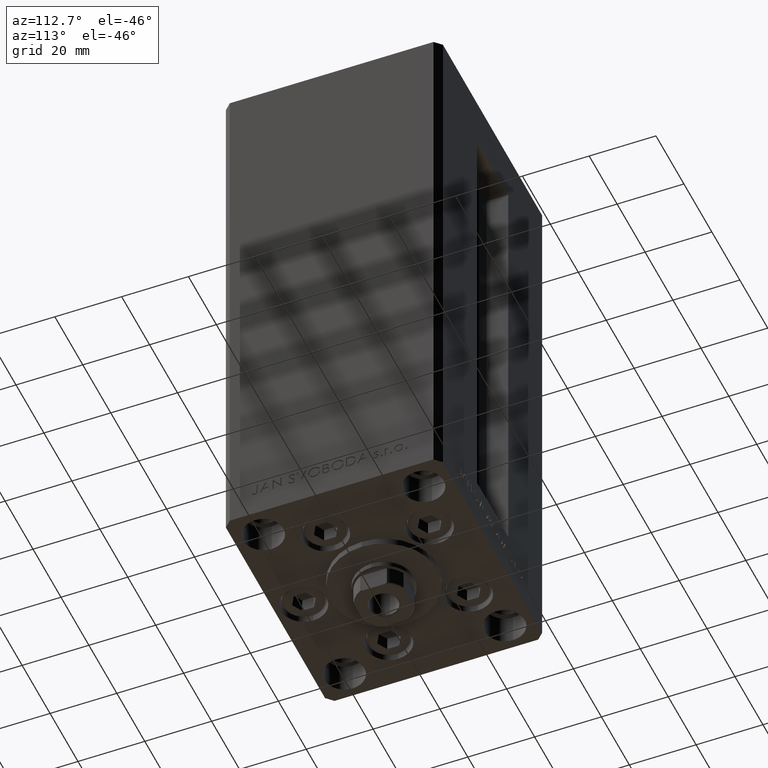
[diagram: clean part render]
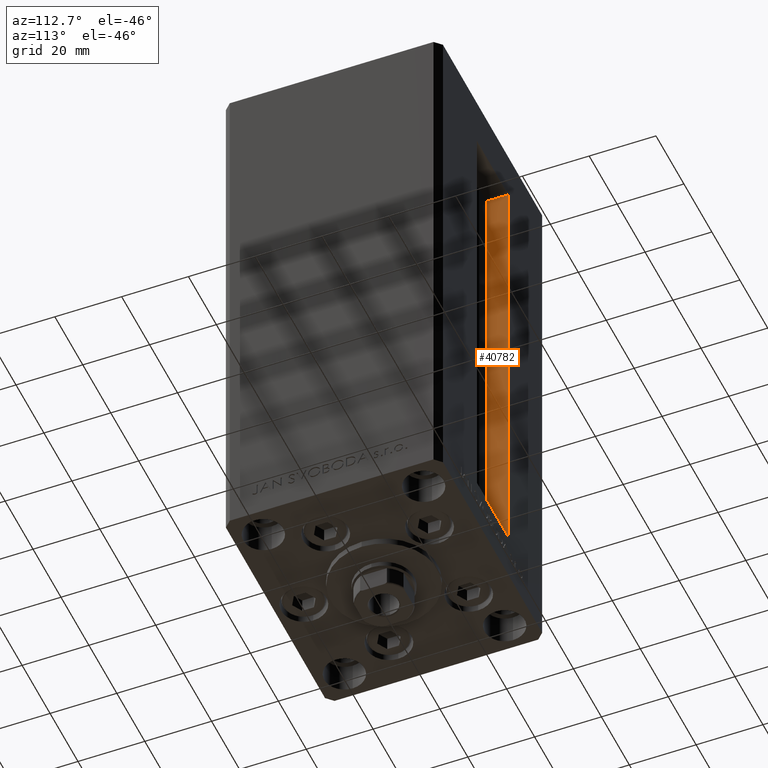
[diagram: same view with one face highlighted and labeled with its STEP entity id]
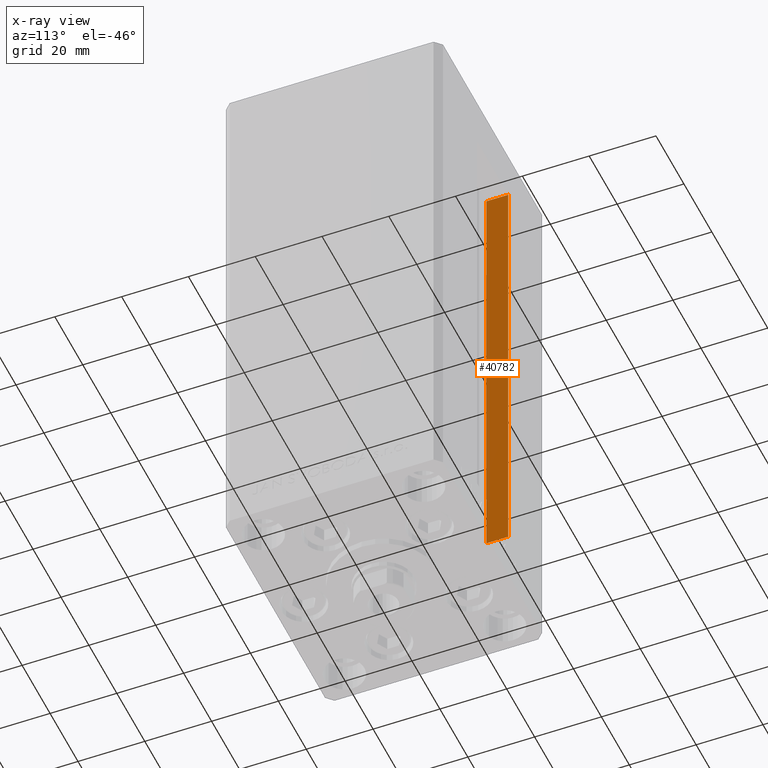
[diagram: x-ray of the same camera — body ghosted, the highlighted face saturated]
A machine part, auxiliary view. The second image highlights one B-rep face of the part: STEP entity #40782.
The next image is the same camera in x-ray: the body ghosted, the highlighted face saturated — about 0% of this face is hidden behind the body in this view.
In plain terms, the highlighted planar face has unit normal (-1, 0, 0).
Its self-contained STEP definition (entity closure, byte-faithful):
#2495 = DIRECTION ( 'NONE',  ( -1.000000000000000000, 0.000000000000000000, 0.000000000000000000 ) ) ;
#5977 = DIRECTION ( 'NONE',  ( 0.000000000000000000, 0.000000000000000000, 1.000000000000000000 ) ) ;
#6738 = EDGE_CURVE ( 'NONE', #45110, #26041, #39820, .T. ) ;
#7441 = AXIS2_PLACEMENT_3D ( 'NONE', #31928, #2495, #5977 ) ;
#9336 = DIRECTION ( 'NONE',  ( -0.000000000000000000, -0.000000000000000000, 1.000000000000000000 ) ) ;
#9955 = CARTESIAN_POINT ( 'NONE',  ( -11.25000000000000178, 25.99999999999999289, 0.000000000000000000 ) ) ;
#13330 = LINE ( 'NONE', #24944, #28068 ) ;
#15028 = CARTESIAN_POINT ( 'NONE',  ( -11.25000000000000178, 25.99999999999999289, 0.000000000000000000 ) ) ;
#15493 = CARTESIAN_POINT ( 'NONE',  ( -11.25000000000000178, 25.99999999999999289, 136.0000000000000000 ) ) ;
#15681 = VECTOR ( 'NONE', #9336, 1000.000000000000000 ) ;
#17087 = PLANE ( 'NONE',  #7441 ) ;
#17246 = EDGE_LOOP ( 'NONE', ( #36266, #33824, #44257, #23002 ) ) ;
#21027 = CARTESIAN_POINT ( 'NONE',  ( -11.25000000000000178, 25.99999999999999289, 0.000000000000000000 ) ) ;
#21764 = FACE_OUTER_BOUND ( 'NONE', #17246, .T. ) ;
#22691 = DIRECTION ( 'NONE',  ( -0.000000000000000000, -1.000000000000000000, -0.000000000000000000 ) ) ;
#23002 = ORIENTED_EDGE ( 'NONE', *, *, #47382, .F. ) ;
#23569 = EDGE_CURVE ( 'NONE', #33283, #34708, #36267, .T. ) ;
#24665 = VECTOR ( 'NONE', #22691, 1000.000000000000000 ) ;
#24944 = CARTESIAN_POINT ( 'NONE',  ( -11.25000000000000178, 0.000000000000000000, 136.0000000000000000 ) ) ;
#26041 = VERTEX_POINT ( 'NONE', #15493 ) ;
#28068 = VECTOR ( 'NONE', #39294, 1000.000000000000000 ) ;
#28691 = DIRECTION ( 'NONE',  ( -0.000000000000000000, -0.000000000000000000, 1.000000000000000000 ) ) ;
#31928 = CARTESIAN_POINT ( 'NONE',  ( -11.25000000000000178, 25.99999999999999289, 0.000000000000000000 ) ) ;
#33283 = VERTEX_POINT ( 'NONE', #36677 ) ;
#33811 = LINE ( 'NONE', #15028, #24665 ) ;
#33824 = ORIENTED_EDGE ( 'NONE', *, *, #36415, .F. ) ;
#34708 = VERTEX_POINT ( 'NONE', #34864 ) ;
#34864 = CARTESIAN_POINT ( 'NONE',  ( -11.25000000000000178, 32.49999999999999289, 136.0000000000000000 ) ) ;
#36266 = ORIENTED_EDGE ( 'NONE', *, *, #6738, .F. ) ;
#36267 = LINE ( 'NONE', #42730, #15681 ) ;
#36415 = EDGE_CURVE ( 'NONE', #33283, #45110, #33811, .T. ) ;
#36677 = CARTESIAN_POINT ( 'NONE',  ( -11.25000000000000178, 32.49999999999999289, 0.000000000000000000 ) ) ;
#39294 = DIRECTION ( 'NONE',  ( 0.000000000000000000, 1.000000000000000000, 0.000000000000000000 ) ) ;
#39820 = LINE ( 'NONE', #21027, #40963 ) ;
#40782 = ADVANCED_FACE ( 'NONE', ( #21764 ), #17087, .F. ) ;
#40963 = VECTOR ( 'NONE', #28691, 1000.000000000000000 ) ;
#42730 = CARTESIAN_POINT ( 'NONE',  ( -11.25000000000000178, 32.49999999999999289, 0.000000000000000000 ) ) ;
#44257 = ORIENTED_EDGE ( 'NONE', *, *, #23569, .T. ) ;
#45110 = VERTEX_POINT ( 'NONE', #9955 ) ;
#47382 = EDGE_CURVE ( 'NONE', #26041, #34708, #13330, .T. ) ;